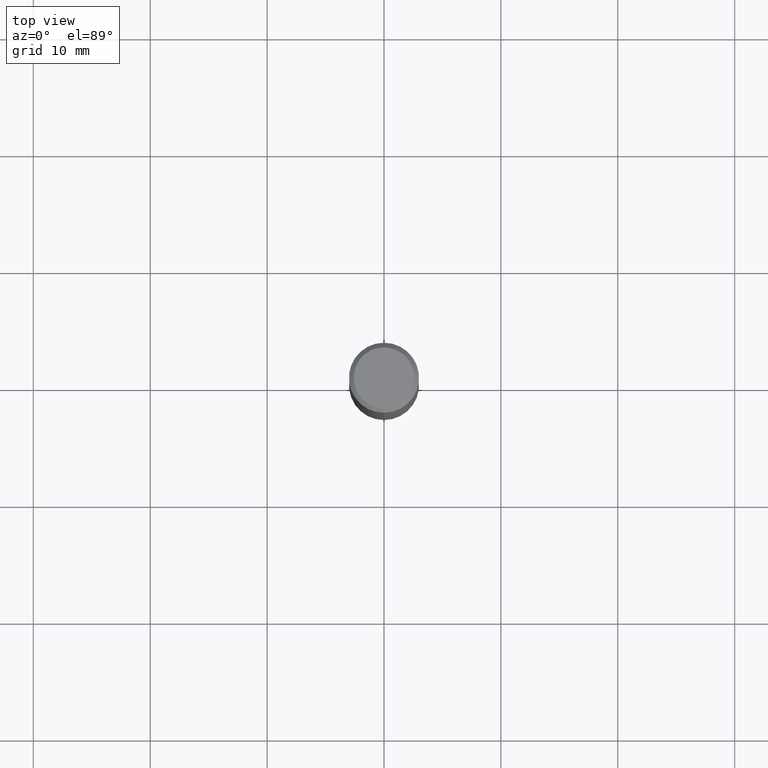
[diagram: clean part render]
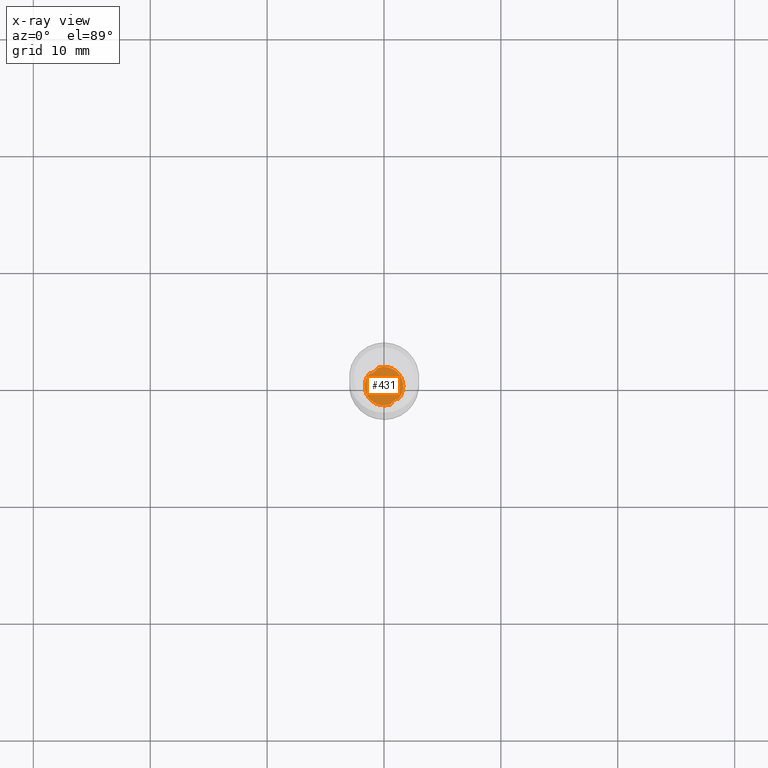
[diagram: x-ray — body ghosted, one internal face saturated and labeled with its STEP entity id]
A machine part, top view, then the same camera in x-ray: the body is ghosted and one INTERNAL B-rep face — a face not visible from any outside direction — is saturated and labeled: STEP entity #431.
In plain terms, the highlighted planar face has unit normal (-0, 0, 1).
Its self-contained STEP definition (entity closure, byte-faithful):
#291=EDGE_CURVE('',#647,#687,#799,.T.);
#321=EDGE_CURVE('',#439,#597,#833,.T.);
#335=EDGE_CURVE('',#361,#687,#848,.T.);
#361=VERTEX_POINT('',#879);
#431=ADVANCED_FACE('',(#954),#955,.T.);
#439=VERTEX_POINT('',#963);
#459=EDGE_CURVE('',#361,#599,#984,.T.);
#463=EDGE_CURVE('',#599,#597,#988,.T.);
#597=VERTEX_POINT('',#1139);
#599=VERTEX_POINT('',#1141);
#647=VERTEX_POINT('',#1192);
#659=EDGE_CURVE('',#439,#647,#1206,.T.);
#687=VERTEX_POINT('',#1234);
#799=CIRCLE('',#1855,1.6499);
#833=B_SPLINE_CURVE_WITH_KNOTS('',3,(#1936,#1937,#1938,#1939,#1940,#1941,#1942,#1943,#1944,#1945,#1946,#1947),.UNSPECIFIED.,.F.,.F.,(4,2,2,2,2,4),(0.0,0.363409823966409,0.692907416440776,1.0213442836228,1.25385936664855,1.49767311010925),.UNSPECIFIED.);
#848=B_SPLINE_CURVE_WITH_KNOTS('',3,(#1965,#1966,#1967,#1968,#1969,#1970,#1971,#1972,#1973,#1974,#1975,#1976),.UNSPECIFIED.,.F.,.F.,(4,2,2,2,2,4),(0.0,0.363409823966337,0.692907416440684,1.02134428362271,1.25385936664846,1.49767311010927),.UNSPECIFIED.);
#879=CARTESIAN_POINT('',(0.565567509231038,-1.54993658015488,-42.0));
#954=FACE_OUTER_BOUND('',#2682,.T.);
#955=PLANE('',#2683);
#963=CARTESIAN_POINT('',(-0.565567509231032,1.54993658015488,-42.0));
#984=CIRCLE('',#2745,1.6499);
#988=CIRCLE('',#2830,1.6499);
#1139=CARTESIAN_POINT('',(-1.24844817663087,1.07867843228048,-42.0));
#1141=CARTESIAN_POINT('',(2.01878766595832E-016,-1.6499,-42.0));
#1192=CARTESIAN_POINT('',(-2.0361344455449E-016,1.6499,-42.0));
#1206=CIRCLE('',#4383,1.6499);
#1234=CARTESIAN_POINT('',(1.24844817663087,-1.07867843228047,-42.0));
#1855=AXIS2_PLACEMENT_3D('',#5227,#5228,#5229);
#1936=CARTESIAN_POINT('',(-0.507250152312129,1.6999,-42.0));
#1937=CARTESIAN_POINT('',(-0.541726491330824,1.58377308734449,-42.0));
#1938=CARTESIAN_POINT('',(-0.596555781171899,1.47550315065293,-41.9999999999937));
#1939=CARTESIAN_POINT('',(-0.742062981685634,1.29682277596132,-41.9999999999937));
#1940=CARTESIAN_POINT('',(-0.82645618417347,1.22694627498977,-42.0000000000003));
#1941=CARTESIAN_POINT('',(-1.01932125164194,1.12388191014258,-42.0000000000003));
#1942=CARTESIAN_POINT('',(-1.12422948786183,1.09242419472646,-42.0));
#1943=CARTESIAN_POINT('',(-1.30971253221792,1.07169675440967,-42.0));
#1944=CARTESIAN_POINT('',(-1.38732495779127,1.07290656707946,-42.0));
#1945=CARTESIAN_POINT('',(-1.54459048979573,1.0932565175046,-42.0));
#1946=CARTESIAN_POINT('',(-1.62363556755769,1.11318896182337,-42.0));
#1947=CARTESIAN_POINT('',(-1.6999,1.14113222594,-42.0));
#1965=CARTESIAN_POINT('',(0.507250152312127,-1.6999,-42.0));
#1966=CARTESIAN_POINT('',(0.541726491330815,-1.58377308734451,-42.0));
#1967=CARTESIAN_POINT('',(0.596555781171885,-1.47550315065293,-41.9999999999937));
#1968=CARTESIAN_POINT('',(0.742062981685642,-1.2968227759613,-41.9999999999937));
#1969=CARTESIAN_POINT('',(0.826456184173476,-1.22694627498976,-42.0000000000003));
#1970=CARTESIAN_POINT('',(1.01932125164193,-1.12388191014258,-42.0000000000003));
#1971=CARTESIAN_POINT('',(1.12422948786182,-1.09242419472645,-42.0));
#1972=CARTESIAN_POINT('',(1.30971253221793,-1.07169675440966,-42.0));
#1973=CARTESIAN_POINT('',(1.38732495779129,-1.07290656707946,-42.0));
#1974=CARTESIAN_POINT('',(1.54459048979574,-1.0932565175046,-42.0));
#1975=CARTESIAN_POINT('',(1.6236355675577,-1.11318896182337,-42.0));
#1976=CARTESIAN_POINT('',(1.6999,-1.14113222594,-42.0));
#2682=EDGE_LOOP('',(#5423,#5424,#5425,#5426,#5427,#5428));
#2683=AXIS2_PLACEMENT_3D('',#5429,#5430,#5431);
#2745=AXIS2_PLACEMENT_3D('',#5455,#5456,#5457);
#2830=AXIS2_PLACEMENT_3D('',#5458,#5459,#5460);
#4383=AXIS2_PLACEMENT_3D('',#5721,#5722,#5723);
#5227=CARTESIAN_POINT('',(0.0,0.0,-42.0));
#5228=DIRECTION('',(0.0,0.0,-1.0));
#5229=DIRECTION('',(0.0,1.0,0.0));
#5423=ORIENTED_EDGE('',*,*,#335,.T.);
#5424=ORIENTED_EDGE('',*,*,#291,.F.);
#5425=ORIENTED_EDGE('',*,*,#659,.F.);
#5426=ORIENTED_EDGE('',*,*,#321,.T.);
#5427=ORIENTED_EDGE('',*,*,#463,.F.);
#5428=ORIENTED_EDGE('',*,*,#459,.F.);
#5429=CARTESIAN_POINT('',(0.0,0.82495,-42.0));
#5430=DIRECTION('',(-0.0,0.0,1.0));
#5431=DIRECTION('',(0.0,-1.0,0.0));
#5455=CARTESIAN_POINT('',(0.0,0.0,-42.0));
#5456=DIRECTION('',(0.0,0.0,-1.0));
#5457=DIRECTION('',(0.0,1.0,0.0));
#5458=CARTESIAN_POINT('',(0.0,0.0,-42.0));
#5459=DIRECTION('',(0.0,0.0,-1.0));
#5460=DIRECTION('',(0.0,1.0,0.0));
#5721=CARTESIAN_POINT('',(0.0,0.0,-42.0));
#5722=DIRECTION('',(0.0,0.0,-1.0));
#5723=DIRECTION('',(0.0,1.0,0.0));